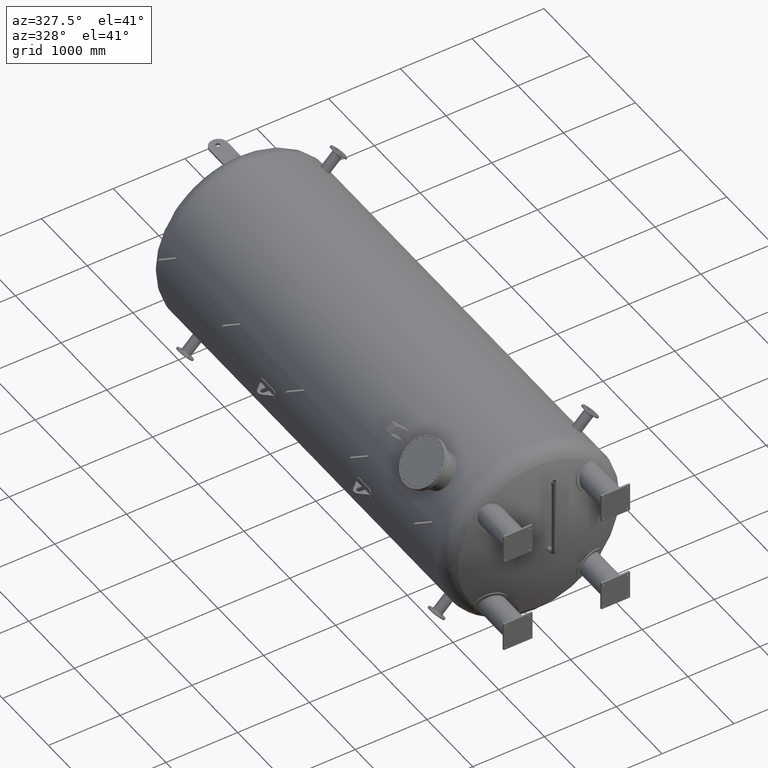
[diagram: clean part render]
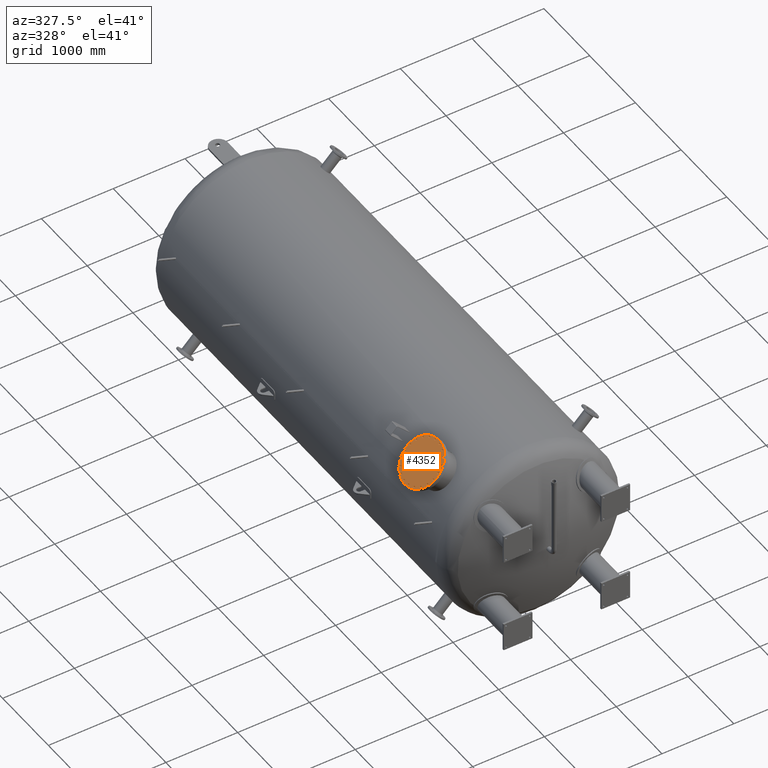
[diagram: same view with one face highlighted and labeled with its STEP entity id]
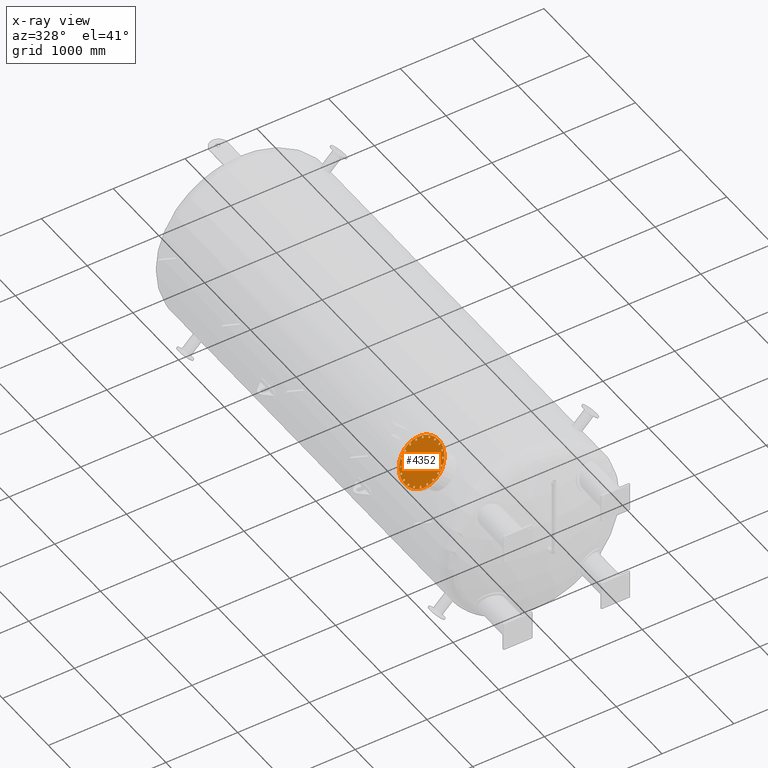
[diagram: x-ray of the same camera — body ghosted, the highlighted face saturated]
A machine part, auxiliary view. The second image highlights one B-rep face of the part: STEP entity #4352.
The next image is the same camera in x-ray: the body ghosted, the highlighted face saturated — about 0% of this face is hidden behind the body in this view.
In plain terms, the highlighted planar face has unit normal (-0.7071, -0, 0.7071).
Its self-contained STEP definition (entity closure, byte-faithful):
#335=PLANE('',#5195);
#496=FACE_BOUND('',#1028,.T.);
#497=FACE_BOUND('',#1029,.T.);
#498=FACE_BOUND('',#1030,.T.);
#499=FACE_BOUND('',#1031,.T.);
#500=FACE_BOUND('',#1032,.T.);
#501=FACE_BOUND('',#1033,.T.);
#502=FACE_BOUND('',#1034,.T.);
#503=FACE_BOUND('',#1035,.T.);
#504=FACE_BOUND('',#1036,.T.);
#505=FACE_BOUND('',#1037,.T.);
#506=FACE_BOUND('',#1038,.T.);
#507=FACE_BOUND('',#1039,.T.);
#508=FACE_BOUND('',#1040,.T.);
#509=FACE_BOUND('',#1041,.T.);
#510=FACE_BOUND('',#1042,.T.);
#511=FACE_BOUND('',#1043,.T.);
#512=FACE_BOUND('',#1044,.T.);
#513=FACE_BOUND('',#1045,.T.);
#514=FACE_BOUND('',#1046,.T.);
#515=FACE_BOUND('',#1047,.T.);
#697=FACE_OUTER_BOUND('',#1027,.T.);
#1027=EDGE_LOOP('',(#3504));
#1028=EDGE_LOOP('',(#3505));
#1029=EDGE_LOOP('',(#3506));
#1030=EDGE_LOOP('',(#3507));
#1031=EDGE_LOOP('',(#3508));
#1032=EDGE_LOOP('',(#3509));
#1033=EDGE_LOOP('',(#3510));
#1034=EDGE_LOOP('',(#3511));
#1035=EDGE_LOOP('',(#3512));
#1036=EDGE_LOOP('',(#3513));
#1037=EDGE_LOOP('',(#3514));
#1038=EDGE_LOOP('',(#3515));
#1039=EDGE_LOOP('',(#3516));
#1040=EDGE_LOOP('',(#3517));
#1041=EDGE_LOOP('',(#3518));
#1042=EDGE_LOOP('',(#3519));
#1043=EDGE_LOOP('',(#3520));
#1044=EDGE_LOOP('',(#3521));
#1045=EDGE_LOOP('',(#3522));
#1046=EDGE_LOOP('',(#3523));
#1047=EDGE_LOOP('',(#3524));
#1770=CIRCLE('',#5133,13.);
#1772=CIRCLE('',#5136,13.);
#1774=CIRCLE('',#5139,13.);
#1776=CIRCLE('',#5142,13.);
#1778=CIRCLE('',#5145,13.);
#1780=CIRCLE('',#5148,13.);
#1782=CIRCLE('',#5151,13.);
#1784=CIRCLE('',#5154,13.);
#1786=CIRCLE('',#5157,13.);
#1788=CIRCLE('',#5160,13.);
#1790=CIRCLE('',#5163,13.);
#1792=CIRCLE('',#5166,13.);
#1794=CIRCLE('',#5169,13.);
#1796=CIRCLE('',#5172,13.);
#1798=CIRCLE('',#5175,13.);
#1800=CIRCLE('',#5178,13.);
#1802=CIRCLE('',#5181,13.);
#1804=CIRCLE('',#5184,13.);
#1806=CIRCLE('',#5187,13.);
#1808=CIRCLE('',#5190,13.);
#1809=CIRCLE('',#5192,335.);
#2115=VERTEX_POINT('',#8855);
#2117=VERTEX_POINT('',#8861);
#2119=VERTEX_POINT('',#8867);
#2121=VERTEX_POINT('',#8873);
#2123=VERTEX_POINT('',#8879);
#2125=VERTEX_POINT('',#8885);
#2127=VERTEX_POINT('',#8891);
#2129=VERTEX_POINT('',#8897);
#2131=VERTEX_POINT('',#8903);
#2133=VERTEX_POINT('',#8909);
#2135=VERTEX_POINT('',#8915);
#2137=VERTEX_POINT('',#8921);
#2139=VERTEX_POINT('',#8927);
#2141=VERTEX_POINT('',#8933);
#2143=VERTEX_POINT('',#8939);
#2145=VERTEX_POINT('',#8945);
#2147=VERTEX_POINT('',#8951);
#2149=VERTEX_POINT('',#8957);
#2151=VERTEX_POINT('',#8963);
#2153=VERTEX_POINT('',#8969);
#2154=VERTEX_POINT('',#8973);
#2582=EDGE_CURVE('',#2115,#2115,#1770,.T.);
#2585=EDGE_CURVE('',#2117,#2117,#1772,.T.);
#2588=EDGE_CURVE('',#2119,#2119,#1774,.T.);
#2591=EDGE_CURVE('',#2121,#2121,#1776,.T.);
#2594=EDGE_CURVE('',#2123,#2123,#1778,.T.);
#2597=EDGE_CURVE('',#2125,#2125,#1780,.T.);
#2600=EDGE_CURVE('',#2127,#2127,#1782,.T.);
#2603=EDGE_CURVE('',#2129,#2129,#1784,.T.);
#2606=EDGE_CURVE('',#2131,#2131,#1786,.T.);
#2609=EDGE_CURVE('',#2133,#2133,#1788,.T.);
#2612=EDGE_CURVE('',#2135,#2135,#1790,.T.);
#2615=EDGE_CURVE('',#2137,#2137,#1792,.T.);
#2618=EDGE_CURVE('',#2139,#2139,#1794,.T.);
#2621=EDGE_CURVE('',#2141,#2141,#1796,.T.);
#2624=EDGE_CURVE('',#2143,#2143,#1798,.T.);
#2627=EDGE_CURVE('',#2145,#2145,#1800,.T.);
#2630=EDGE_CURVE('',#2147,#2147,#1802,.T.);
#2633=EDGE_CURVE('',#2149,#2149,#1804,.T.);
#2636=EDGE_CURVE('',#2151,#2151,#1806,.T.);
#2639=EDGE_CURVE('',#2153,#2153,#1808,.T.);
#2640=EDGE_CURVE('',#2154,#2154,#1809,.T.);
#3504=ORIENTED_EDGE('',*,*,#2640,.T.);
#3505=ORIENTED_EDGE('',*,*,#2582,.T.);
#3506=ORIENTED_EDGE('',*,*,#2585,.T.);
#3507=ORIENTED_EDGE('',*,*,#2588,.T.);
#3508=ORIENTED_EDGE('',*,*,#2591,.T.);
#3509=ORIENTED_EDGE('',*,*,#2594,.T.);
#3510=ORIENTED_EDGE('',*,*,#2597,.T.);
#3511=ORIENTED_EDGE('',*,*,#2600,.T.);
#3512=ORIENTED_EDGE('',*,*,#2603,.T.);
#3513=ORIENTED_EDGE('',*,*,#2606,.T.);
#3514=ORIENTED_EDGE('',*,*,#2609,.T.);
#3515=ORIENTED_EDGE('',*,*,#2612,.T.);
#3516=ORIENTED_EDGE('',*,*,#2615,.T.);
#3517=ORIENTED_EDGE('',*,*,#2618,.T.);
#3518=ORIENTED_EDGE('',*,*,#2621,.T.);
#3519=ORIENTED_EDGE('',*,*,#2624,.T.);
#3520=ORIENTED_EDGE('',*,*,#2627,.T.);
#3521=ORIENTED_EDGE('',*,*,#2630,.T.);
#3522=ORIENTED_EDGE('',*,*,#2633,.T.);
#3523=ORIENTED_EDGE('',*,*,#2636,.T.);
#3524=ORIENTED_EDGE('',*,*,#2639,.T.);
#4352=ADVANCED_FACE('',(#697,#496,#497,#498,#499,#500,#501,#502,#503,#504,
#505,#506,#507,#508,#509,#510,#511,#512,#513,#514,#515),#335,.T.);
#5133=AXIS2_PLACEMENT_3D('',#8857,#5999,#6000);
#5136=AXIS2_PLACEMENT_3D('',#8863,#6006,#6007);
#5139=AXIS2_PLACEMENT_3D('',#8869,#6013,#6014);
#5142=AXIS2_PLACEMENT_3D('',#8875,#6020,#6021);
#5145=AXIS2_PLACEMENT_3D('',#8881,#6027,#6028);
#5148=AXIS2_PLACEMENT_3D('',#8887,#6034,#6035);
#5151=AXIS2_PLACEMENT_3D('',#8893,#6041,#6042);
#5154=AXIS2_PLACEMENT_3D('',#8899,#6048,#6049);
#5157=AXIS2_PLACEMENT_3D('',#8905,#6055,#6056);
#5160=AXIS2_PLACEMENT_3D('',#8911,#6062,#6063);
#5163=AXIS2_PLACEMENT_3D('',#8917,#6069,#6070);
#5166=AXIS2_PLACEMENT_3D('',#8923,#6076,#6077);
#5169=AXIS2_PLACEMENT_3D('',#8929,#6083,#6084);
#5172=AXIS2_PLACEMENT_3D('',#8935,#6090,#6091);
#5175=AXIS2_PLACEMENT_3D('',#8941,#6097,#6098);
#5178=AXIS2_PLACEMENT_3D('',#8947,#6104,#6105);
#5181=AXIS2_PLACEMENT_3D('',#8953,#6111,#6112);
#5184=AXIS2_PLACEMENT_3D('',#8959,#6118,#6119);
#5187=AXIS2_PLACEMENT_3D('',#8965,#6125,#6126);
#5190=AXIS2_PLACEMENT_3D('',#8971,#6132,#6133);
#5192=AXIS2_PLACEMENT_3D('',#8974,#6136,#6137);
#5195=AXIS2_PLACEMENT_3D('',#8979,#6143,#6144);
#5999=DIRECTION('center_axis',(0.,-1.,0.));
#6000=DIRECTION('ref_axis',(1.,0.,0.));
#6006=DIRECTION('center_axis',(0.,-1.,0.));
#6007=DIRECTION('ref_axis',(1.,0.,0.));
#6013=DIRECTION('center_axis',(0.,-1.,0.));
#6014=DIRECTION('ref_axis',(1.,0.,0.));
#6020=DIRECTION('center_axis',(0.,-1.,0.));
#6021=DIRECTION('ref_axis',(1.,0.,0.));
#6027=DIRECTION('center_axis',(0.,-1.,0.));
#6028=DIRECTION('ref_axis',(1.,0.,0.));
#6034=DIRECTION('center_axis',(0.,-1.,0.));
#6035=DIRECTION('ref_axis',(1.,0.,0.));
#6041=DIRECTION('center_axis',(0.,-1.,0.));
#6042=DIRECTION('ref_axis',(1.,0.,0.));
#6048=DIRECTION('center_axis',(0.,-1.,0.));
#6049=DIRECTION('ref_axis',(1.,0.,0.));
#6055=DIRECTION('center_axis',(0.,-1.,0.));
#6056=DIRECTION('ref_axis',(1.,0.,0.));
#6062=DIRECTION('center_axis',(0.,-1.,0.));
#6063=DIRECTION('ref_axis',(1.,0.,0.));
#6069=DIRECTION('center_axis',(0.,-1.,0.));
#6070=DIRECTION('ref_axis',(1.,0.,0.));
#6076=DIRECTION('center_axis',(0.,-1.,0.));
#6077=DIRECTION('ref_axis',(1.,0.,0.));
#6083=DIRECTION('center_axis',(0.,-1.,0.));
#6084=DIRECTION('ref_axis',(1.,0.,0.));
#6090=DIRECTION('center_axis',(0.,-1.,0.));
#6091=DIRECTION('ref_axis',(1.,0.,0.));
#6097=DIRECTION('center_axis',(0.,-1.,0.));
#6098=DIRECTION('ref_axis',(1.,0.,0.));
#6104=DIRECTION('center_axis',(0.,-1.,0.));
#6105=DIRECTION('ref_axis',(1.,0.,0.));
#6111=DIRECTION('center_axis',(0.,-1.,0.));
#6112=DIRECTION('ref_axis',(1.,0.,0.));
#6118=DIRECTION('center_axis',(0.,-1.,0.));
#6119=DIRECTION('ref_axis',(1.,0.,0.));
#6125=DIRECTION('center_axis',(0.,-1.,0.));
#6126=DIRECTION('ref_axis',(1.,0.,0.));
#6132=DIRECTION('center_axis',(0.,-1.,0.));
#6133=DIRECTION('ref_axis',(1.,0.,0.));
#6136=DIRECTION('center_axis',(0.,1.,0.));
#6137=DIRECTION('ref_axis',(1.,0.,0.));
#6143=DIRECTION('center_axis',(0.,1.,0.));
#6144=DIRECTION('ref_axis',(0.,0.,1.));
#8855=CARTESIAN_POINT('',(-153.73705491926,28.,276.212022498394));
#8857=CARTESIAN_POINT('Origin',(-140.73705491926,28.,276.212022498394));
#8861=CARTESIAN_POINT('',(-232.20310216783,28.,219.20310216783));
#8863=CARTESIAN_POINT('Origin',(-219.20310216783,28.,219.20310216783));
#8867=CARTESIAN_POINT('',(-289.212022498394,28.,140.73705491926));
#8869=CARTESIAN_POINT('Origin',(-276.212022498394,28.,140.73705491926));
#8873=CARTESIAN_POINT('',(-319.183385584493,28.,48.4946841624716));
#8875=CARTESIAN_POINT('Origin',(-306.183385584493,28.,48.4946841624716));
#8879=CARTESIAN_POINT('',(-319.183385584493,28.,-48.4946841624716));
#8881=CARTESIAN_POINT('Origin',(-306.183385584493,28.,-48.4946841624716));
#8885=CARTESIAN_POINT('',(-289.212022498394,28.,-140.73705491926));
#8887=CARTESIAN_POINT('Origin',(-276.212022498394,28.,-140.73705491926));
#8891=CARTESIAN_POINT('',(-232.20310216783,28.,-219.20310216783));
#8893=CARTESIAN_POINT('Origin',(-219.20310216783,28.,-219.20310216783));
#8897=CARTESIAN_POINT('',(-153.73705491926,28.,-276.212022498394));
#8899=CARTESIAN_POINT('Origin',(-140.73705491926,28.,-276.212022498394));
#8903=CARTESIAN_POINT('',(-61.4946841624715,28.,-306.183385584493));
#8905=CARTESIAN_POINT('Origin',(-48.4946841624716,28.,-306.183385584493));
#8909=CARTESIAN_POINT('',(35.4946841624716,28.,-306.183385584493));
#8911=CARTESIAN_POINT('Origin',(48.4946841624716,28.,-306.183385584493));
#8915=CARTESIAN_POINT('',(127.73705491926,28.,-276.212022498394));
#8917=CARTESIAN_POINT('Origin',(140.73705491926,28.,-276.212022498394));
#8921=CARTESIAN_POINT('',(206.20310216783,28.,-219.20310216783));
#8923=CARTESIAN_POINT('Origin',(219.20310216783,28.,-219.20310216783));
#8927=CARTESIAN_POINT('',(263.212022498394,28.,-140.73705491926));
#8929=CARTESIAN_POINT('Origin',(276.212022498394,28.,-140.73705491926));
#8933=CARTESIAN_POINT('',(293.183385584493,28.,-48.4946841624716));
#8935=CARTESIAN_POINT('Origin',(306.183385584493,28.,-48.4946841624716));
#8939=CARTESIAN_POINT('',(293.183385584493,28.,48.4946841624716));
#8941=CARTESIAN_POINT('Origin',(306.183385584493,28.,48.4946841624716));
#8945=CARTESIAN_POINT('',(263.212022498394,28.,140.73705491926));
#8947=CARTESIAN_POINT('Origin',(276.212022498394,28.,140.73705491926));
#8951=CARTESIAN_POINT('',(206.20310216783,28.,219.20310216783));
#8953=CARTESIAN_POINT('Origin',(219.20310216783,28.,219.20310216783));
#8957=CARTESIAN_POINT('',(127.73705491926,28.,276.212022498394));
#8959=CARTESIAN_POINT('Origin',(140.73705491926,28.,276.212022498394));
#8963=CARTESIAN_POINT('',(35.4946841624716,28.,306.183385584493));
#8965=CARTESIAN_POINT('Origin',(48.4946841624716,28.,306.183385584493));
#8969=CARTESIAN_POINT('',(-61.4946841624716,28.,306.183385584493));
#8971=CARTESIAN_POINT('Origin',(-48.4946841624716,28.,306.183385584493));
#8973=CARTESIAN_POINT('',(-335.,28.,4.10256677714363E-14));
#8974=CARTESIAN_POINT('Origin',(0.,28.,0.));
#8979=CARTESIAN_POINT('Origin',(1.47309288039994E-14,28.,-5.65606157818985E-15));